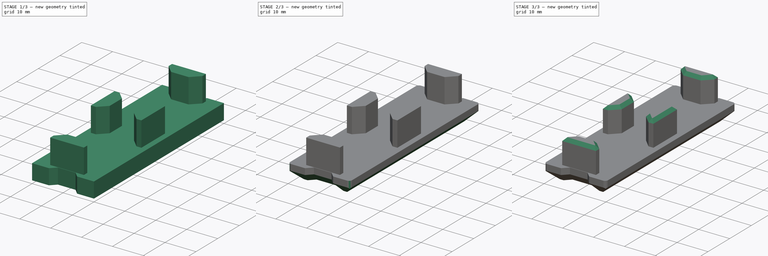
[diagram: build sequence overview — one tinted view per stage of 3, left to right]
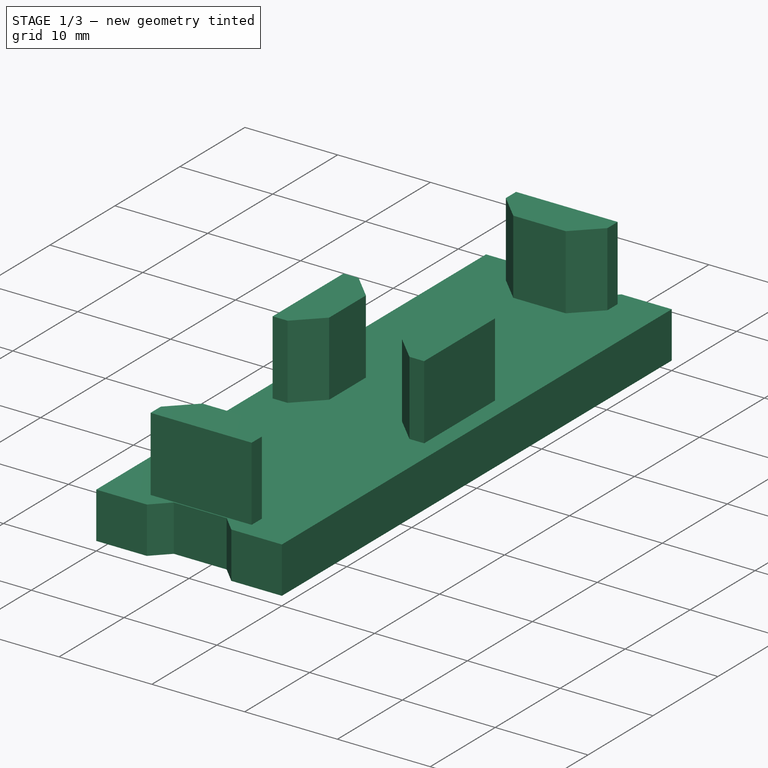
[diagram: stage 1 of 3 — iso view after this stage's code; geometry added in this stage tinted green]
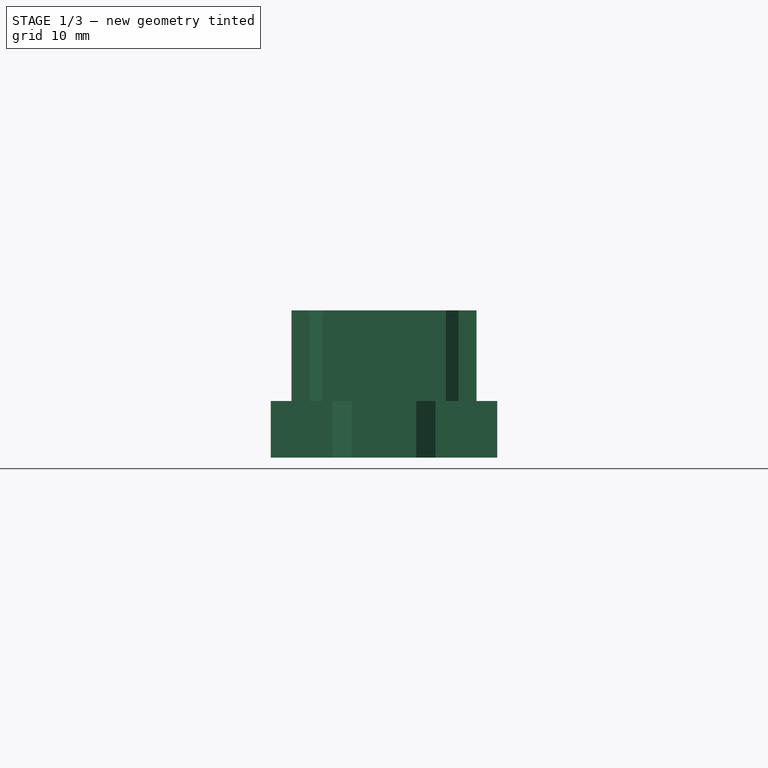
[diagram: stage 1 of 3 — front view after this stage's code; geometry added in this stage tinted green]
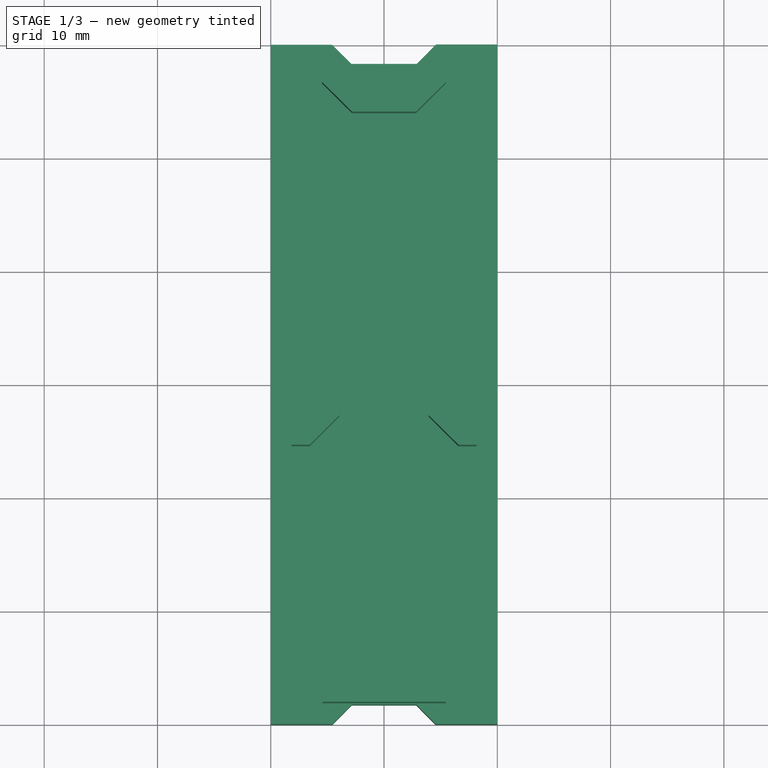
[diagram: stage 1 of 3 — top view after this stage's code; geometry added in this stage tinted green]
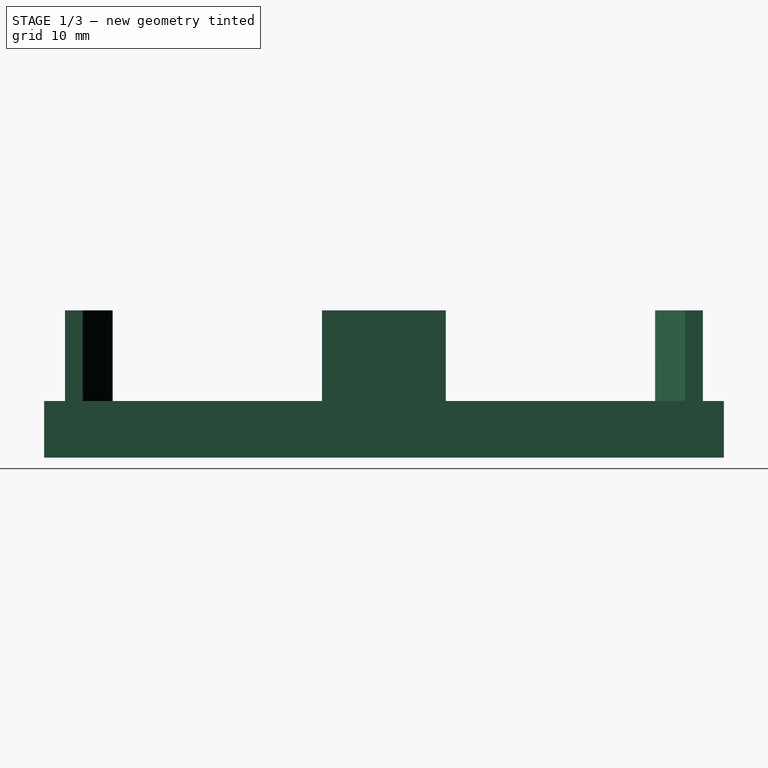
[diagram: stage 1 of 3 — right view after this stage's code; geometry added in this stage tinted green]
FCSTD DOCUMENT  (FreeCAD 0.16R6703 (Git))
Label: RailEndCap
License: All rights reserved
LicenseURL: http://en.wikipedia.org/wiki/All_rights_reserved
objects: Sketcher::SketchObject×2, PartDesign::Pad×2, PartDesign::Chamfer×2, PartDesign::Fillet×1, Part::Part2DObjectPython×1, PartDesign::Pocket×1
note: 12 computed .brp shape members not serialized (recipe doc carries the construction recipe); baked Part::Feature solids carry a one-line shape summary decoded from their .brp

FEATURE [Sketcher::SketchObject] Sketch
  sketch-geometry (12):
    g0: LineSegment StartX=9.99749 StartY=30.0168 StartZ=0 EndX=9.99749 EndY=-29.9832 EndZ=0
    g1: LineSegment StartX=-10.0025 StartY=-29.9873 StartZ=0 EndX=-10.0025 EndY=30 EndZ=0
    g2: LineSegment StartX=9.99749 StartY=30.0168 StartZ=0 EndX=4.59319 EndY=30.0168 EndZ=0
    g3: LineSegment StartX=4.59319 StartY=30.0168 StartZ=0 EndX=2.87656 EndY=28.2856 EndZ=0
    g4: LineSegment StartX=2.87656 StartY=28.2856 StartZ=0 EndX=-2.86481 EndY=28.2856 EndZ=0
    g5: LineSegment StartX=-2.86481 StartY=28.2856 StartZ=0 EndX=-4.59822 EndY=30 EndZ=0
    g6: LineSegment StartX=-10.0025 StartY=-29.9873 StartZ=0 EndX=-4.55432 EndY=-29.9873 EndZ=0
    g7: LineSegment StartX=-4.55432 StartY=-29.9873 StartZ=0 EndX=-2.85364 EndY=-28.2669 EndZ=0
    g8: LineSegment StartX=-2.85364 StartY=-28.2669 StartZ=0 EndX=2.84451 EndY=-28.2669 EndZ=0
    g9: LineSegment StartX=2.84451 StartY=-28.2669 StartZ=0 EndX=4.54929 EndY=-29.9832 EndZ=0
    g10: LineSegment StartX=4.54929 StartY=-29.9832 StartZ=0 EndX=9.99749 EndY=-29.9832 EndZ=0
    g11: LineSegment StartX=-10.0025 StartY=30 StartZ=0 EndX=-4.59822 EndY=30 EndZ=0
  constraints (26):
    c: Vertical(g0)
    c: Vertical(g1)
    c: DistanceX(g1,g0) = 20
    c: DistanceY(g0,g0) = 60
    c: Coincident(g2,g0)
    c: Horizontal(g2)
    c: Coincident(g3,g2)
    c: Coincident(g4,g3)
    c: Horizontal(g4)
    c: Coincident(g5,g4)
    c: Equal(g5,g3)
    c: Coincident(g6,g1)
    c: Horizontal(g6)
    c: Coincident(g7,g6)
    c: Coincident(g8,g7)
    c: Horizontal(g8)
    c: Coincident(g9,g8)
    c: Coincident(g10,g9)
    c: Coincident(g10,g0)
    c: Horizontal(g10)
    c: Equal(g10,g6)
    c: Equal(g9,g7)
    c: Coincident(g11,g1)
    c: Coincident(g11,g5)
    c: Horizontal(g11)
    c: Equal(g11,g2)
FEATURE [PartDesign::Pad] Pad
  Length = 5
  Length2 = 100
  Sketch = -> Sketch
  Type = 0
FEATURE [Sketcher::SketchObject] Sketch001
  Placement = pos=(0,0,5) rot=(0,0,1;0rad)
  Support = -> Pad [Face14]
  sketch-geometry (24):
    g0: LineSegment StartX=-5.47606 StartY=28.1618 StartZ=0 EndX=-5.47606 EndY=26.5833 EndZ=0
    g1: LineSegment StartX=-5.47606 StartY=26.5833 StartZ=0 EndX=-2.8249 EndY=23.9467 EndZ=0
    g2: LineSegment StartX=-2.8249 StartY=23.9467 StartZ=0 EndX=2.82179 EndY=23.9467 EndZ=0
    g3: LineSegment StartX=2.82179 StartY=23.9467 StartZ=0 EndX=5.47295 EndY=26.5833 EndZ=0
    g4: LineSegment StartX=5.47295 StartY=26.5833 StartZ=0 EndX=5.47295 EndY=28.1618 EndZ=0
    g5: LineSegment StartX=5.47295 StartY=28.1618 StartZ=0 EndX=-5.47606 EndY=28.1618 EndZ=0
    g6: LineSegment StartX=8.15983 StartY=5.45023 StartZ=0 EndX=6.5781 EndY=5.45023 EndZ=0
    g7: LineSegment StartX=6.5781 StartY=5.45023 StartZ=0 EndX=3.93183 EndY=2.82157 EndZ=0
    g8: LineSegment StartX=3.93183 StartY=2.82157 StartZ=0 EndX=3.93183 EndY=-2.83523 EndZ=0
    g9: LineSegment StartX=3.93183 StartY=-2.83523 StartZ=0 EndX=6.5781 EndY=-5.4639 EndZ=0
    g10: LineSegment StartX=6.5781 StartY=-5.4639 StartZ=0 EndX=8.15983 EndY=-5.4639 EndZ=0
    g11: LineSegment StartX=8.15983 StartY=5.45023 StartZ=0 EndX=8.15983 EndY=-5.4639 EndZ=0
    g12: LineSegment StartX=-8.17139 StartY=5.46901 StartZ=0 EndX=-6.56387 EndY=5.46901 EndZ=0
    g13: LineSegment StartX=-6.56387 StartY=5.46901 StartZ=0 EndX=-3.92657 EndY=2.83421 EndZ=0
    g14: LineSegment StartX=-3.92657 StartY=2.83421 StartZ=0 EndX=-3.92657 EndY=-2.82266 EndZ=0
    g15: LineSegment StartX=-3.92657 StartY=-2.82266 StartZ=0 EndX=-6.56387 EndY=-5.45746 EndZ=0
    g16: LineSegment StartX=-6.56387 StartY=-5.45746 StartZ=0 EndX=-8.17139 EndY=-5.45746 EndZ=0
    g17: LineSegment StartX=-8.17139 StartY=-5.45746 StartZ=0 EndX=-8.17139 EndY=5.46901 EndZ=0
    g18: LineSegment StartX=-2.79652 StartY=-23.9444 StartZ=0 EndX=-5.43528 EndY=-26.5762 EndZ=0
    g19: LineSegment StartX=-5.43528 StartY=-26.5762 StartZ=0 EndX=-5.43528 EndY=-28.1519 EndZ=0
    g20: LineSegment StartX=-5.43528 StartY=-28.1519 StartZ=0 EndX=5.45481 EndY=-28.1519 EndZ=0
    g21: LineSegment StartX=5.45481 StartY=-28.1519 StartZ=0 EndX=5.45481 EndY=-26.5762 EndZ=0
    g22: LineSegment StartX=5.45481 StartY=-26.5762 StartZ=0 EndX=2.81605 EndY=-23.9444 EndZ=0
    g23: LineSegment StartX=2.81605 StartY=-23.9444 StartZ=0 EndX=-2.79652 EndY=-23.9444 EndZ=0
  constraints (48):
    c: Vertical(g0)
    c: Coincident(g1,g0)
    c: Coincident(g2,g1)
    c: Horizontal(g2)
    c: Coincident(g3,g2)
    c: Coincident(g4,g3)
    c: Vertical(g4)
    c: Coincident(g5,g4)
    c: Coincident(g5,g0)
    c: Horizontal(g5)
    c: Equal(g0,g4)
    c: Equal(g3,g1)
    c: Horizontal(g6)
    c: Coincident(g7,g6)
    c: Coincident(g8,g7)
    c: Vertical(g8)
    c: Coincident(g9,g8)
    c: Coincident(g10,g9)
    c: Horizontal(g10)
    c: Coincident(g11,g6)
    c: Coincident(g11,g10)
    c: Vertical(g11)
    c: Equal(g7,g9)
    c: Equal(g6,g10)
    c: Horizontal(g12)
    c: Coincident(g13,g12)
    c: Coincident(g14,g13)
    c: Vertical(g14)
    c: Coincident(g15,g14)
    c: Coincident(g16,g15)
    c: Horizontal(g16)
    c: Coincident(g17,g16)
    c: Coincident(g17,g12)
    c: Vertical(g17)
    c: Equal(g13,g15)
    c: Equal(g16,g12)
    c: Coincident(g19,g18)
    c: Vertical(g19)
    c: Coincident(g20,g19)
    c: Horizontal(g20)
    c: Coincident(g21,g20)
    c: Vertical(g21)
    c: Coincident(g22,g21)
    c: Coincident(g23,g22)
    c: Coincident(g23,g18)
    c: Horizontal(g23)
    c: Equal(g22,g18)
    c: Equal(g21,g19)
FEATURE [PartDesign::Pad] Pad001
  Length = 8
  Length2 = 100
  Sketch = -> Sketch001
  Type = 0
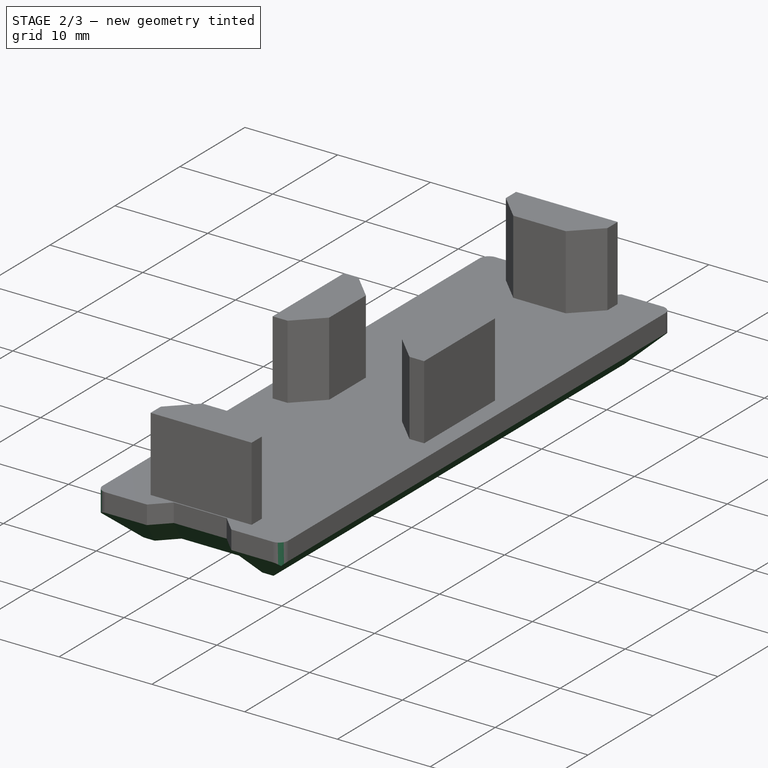
[diagram: stage 2 of 3 — iso view after this stage's code; geometry added in this stage tinted green]
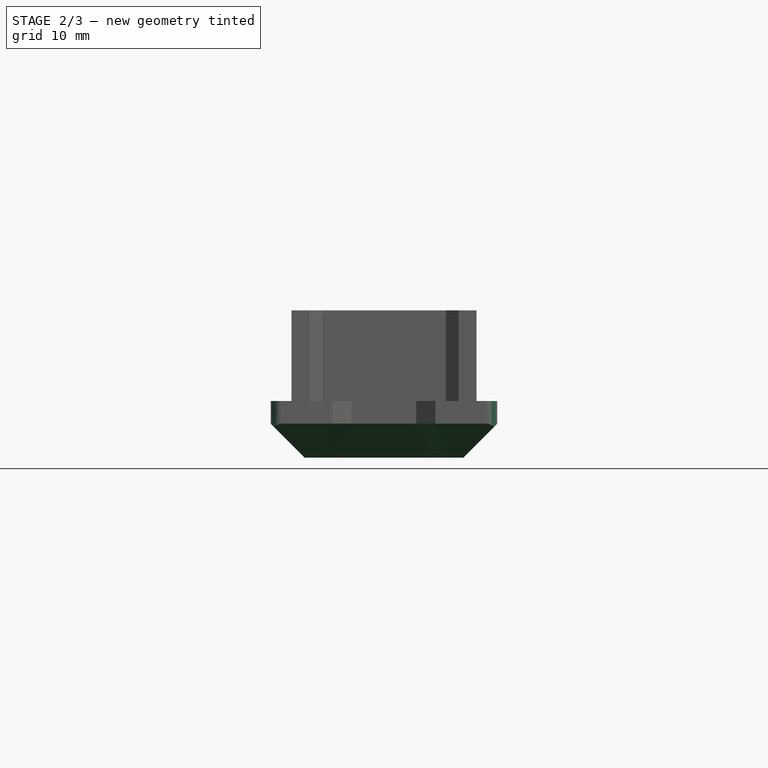
[diagram: stage 2 of 3 — front view after this stage's code; geometry added in this stage tinted green]
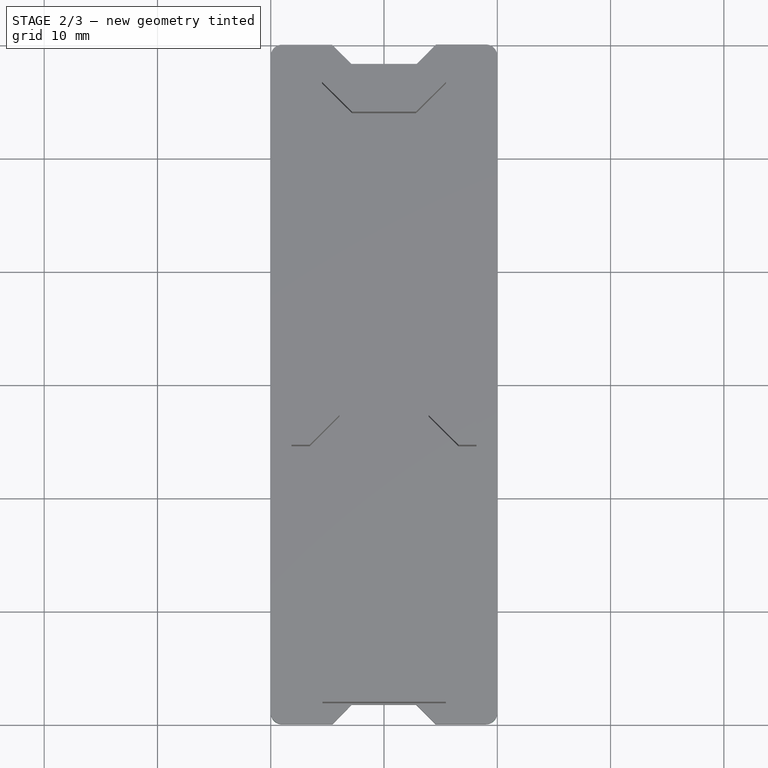
[diagram: stage 2 of 3 — top view after this stage's code; geometry added in this stage tinted green]
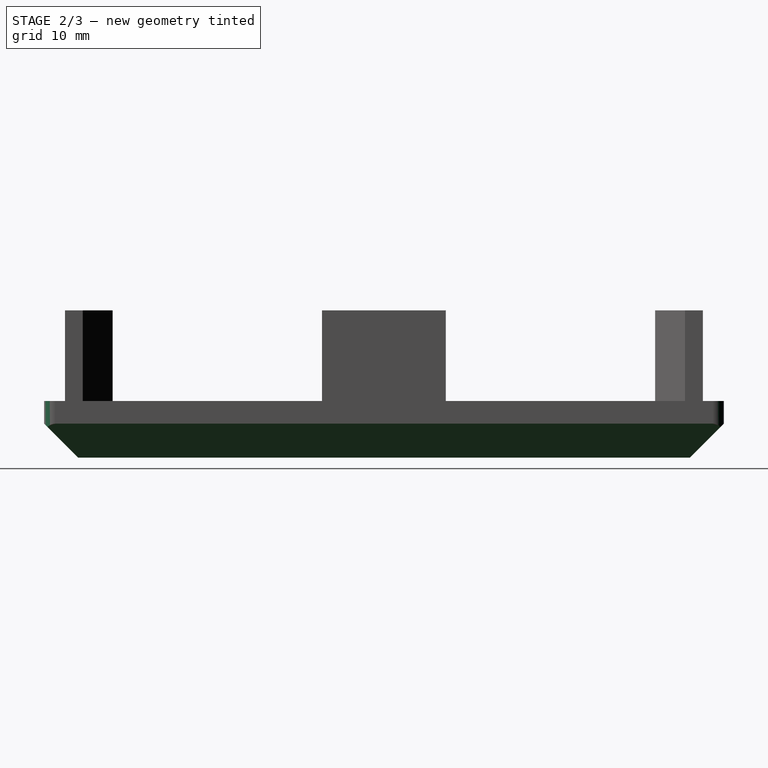
[diagram: stage 2 of 3 — right view after this stage's code; geometry added in this stage tinted green]
FEATURE [PartDesign::Chamfer] Chamfer
  Base = -> Pad001 [Edge3,Edge6,Edge11,Edge12,Edge13,Edge14,Edge15,Edge16,Edge17,Edge18,Edge19,Edge9]
  Size = 3
FEATURE [PartDesign::Fillet] Fillet
  Base = -> Chamfer [Edge1,Edge70,Edge7,Edge74]
  Radius = 1
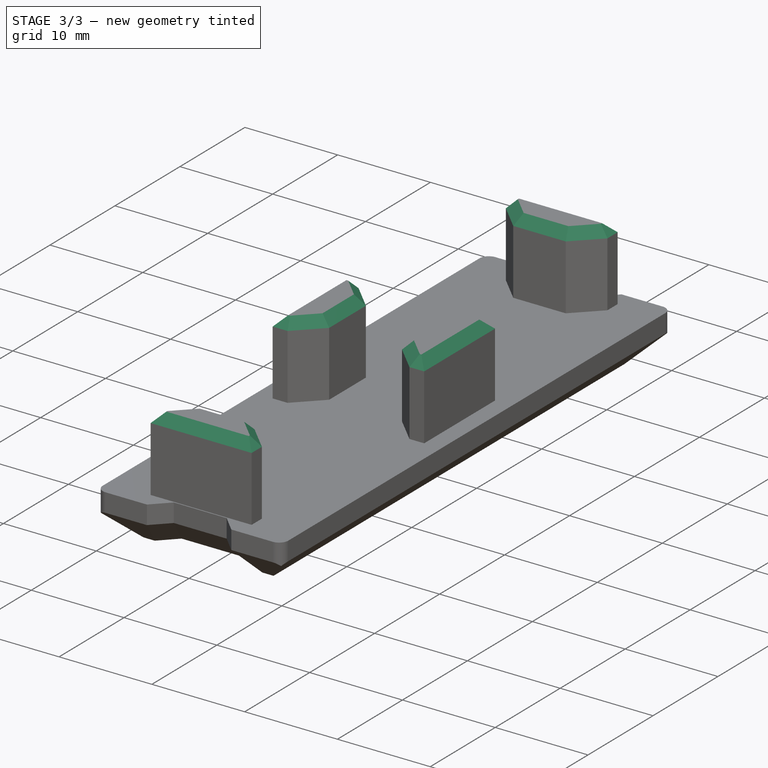
[diagram: stage 3 of 3 — iso view after this stage's code; geometry added in this stage tinted green]
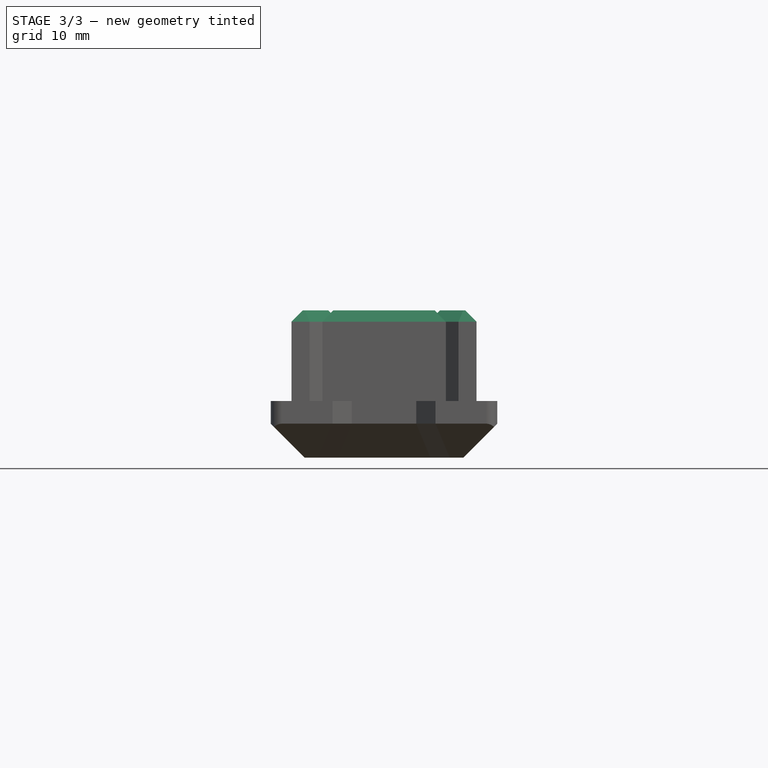
[diagram: stage 3 of 3 — front view after this stage's code; geometry added in this stage tinted green]
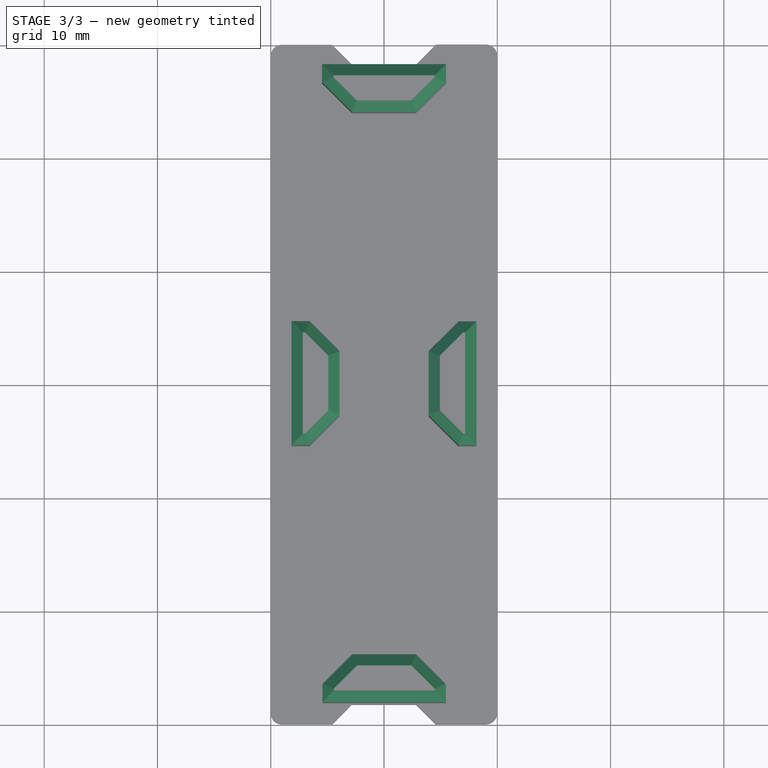
[diagram: stage 3 of 3 — top view after this stage's code; geometry added in this stage tinted green]
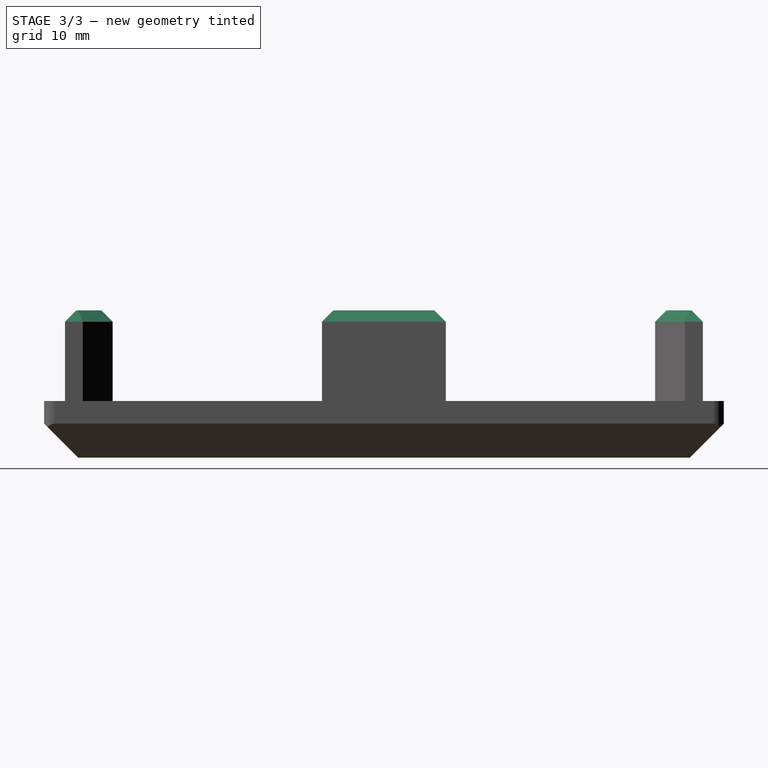
[diagram: stage 3 of 3 — right view after this stage's code; geometry added in this stage tinted green]
FEATURE [PartDesign::Chamfer] Chamfer001
  Base = -> Fillet [Edge99,Edge97,Edge94,Edge104,Edge103,Edge101,Edge106,Edge108,Edge110,Edge112,Edge114,Edge116,Edge118,Edge128,Edge127,Edge125,Edge123,Edge120,Edge140,Edge139,Edge137,Edge135,Edge133,Edge130]
  Size = 1
FEATURE [Part::Part2DObjectPython] ShapeString  # Draft 2D object (typed FeaturePython)
  FontFile = C:/AdobeGothicStd-Bold.otf
  Placement = pos=(-3,-23,0) rot=(0.707107,0.707107,0;3.14159rad)
  Size = 5
  String = OPEN SLIDER
  Support = -> Chamfer001
  Tracking = 0
FEATURE [PartDesign::Pocket] Pocket
  Length = 1
  Sketch = -> ShapeString
  Type = 0
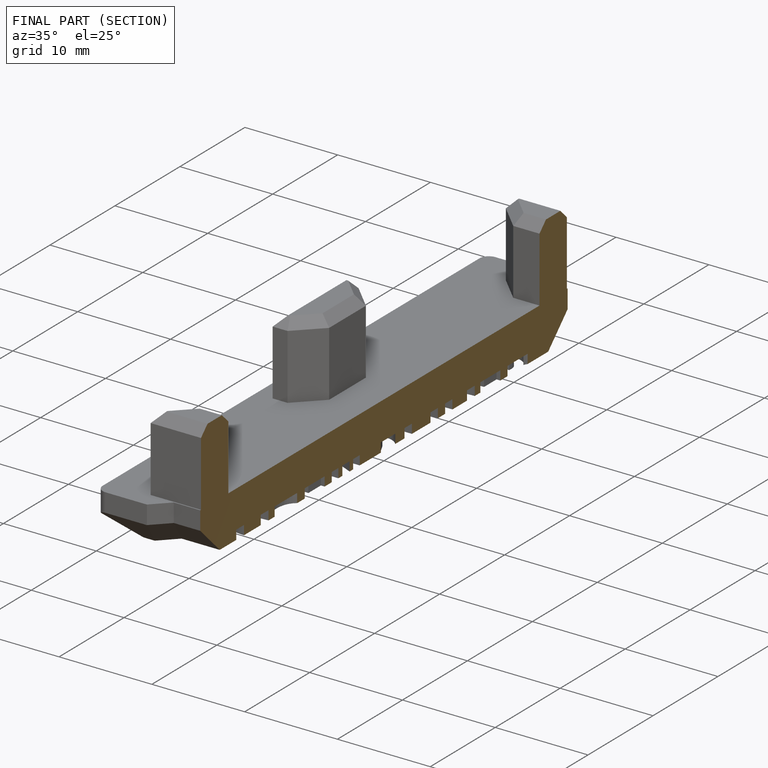
[diagram: finished part — half-section view (interior)]
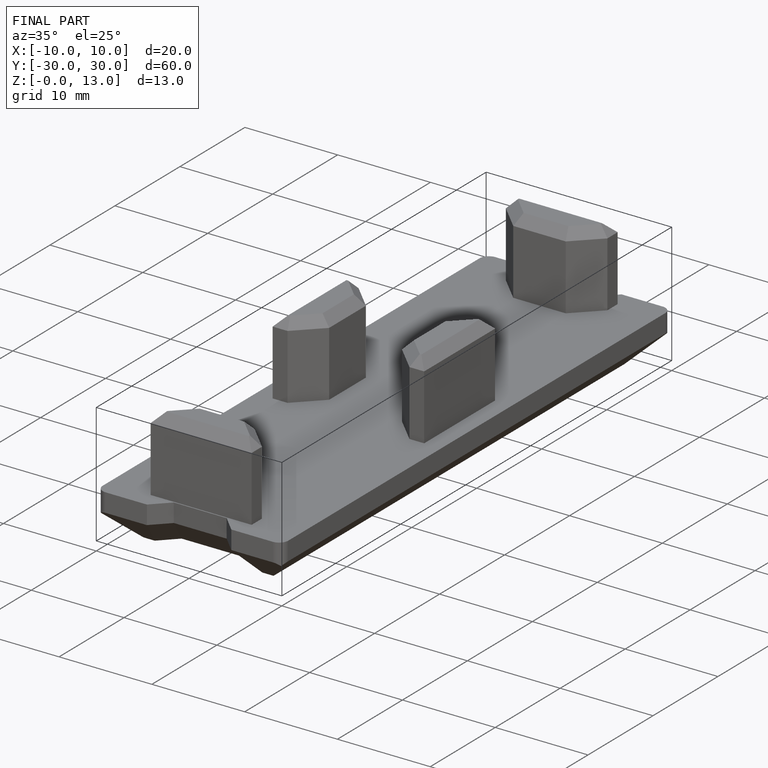
[diagram: finished part — iso view with bounding-box wireframe]
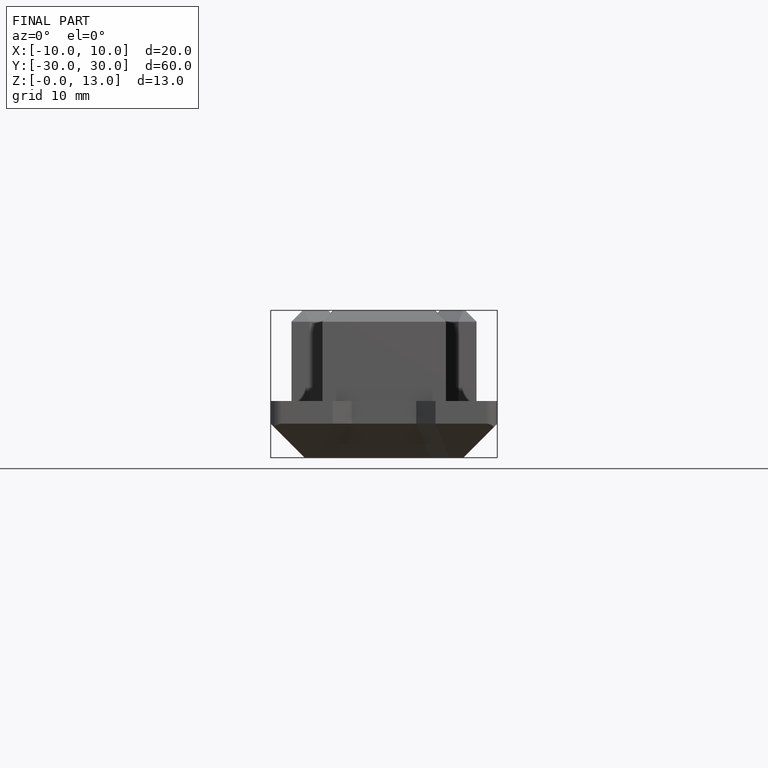
[diagram: finished part — front view with bounding-box wireframe]
